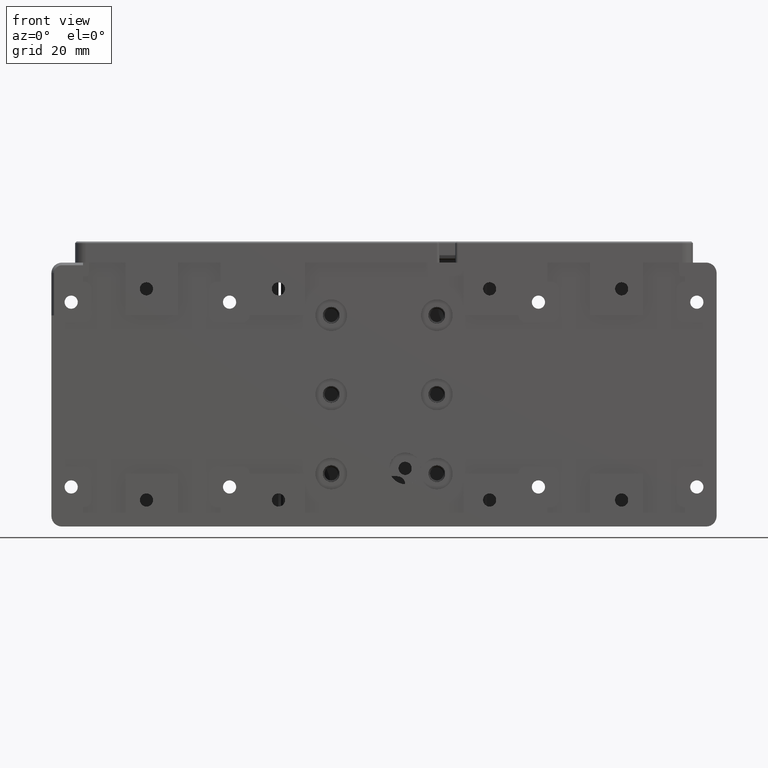
[diagram: clean part render]
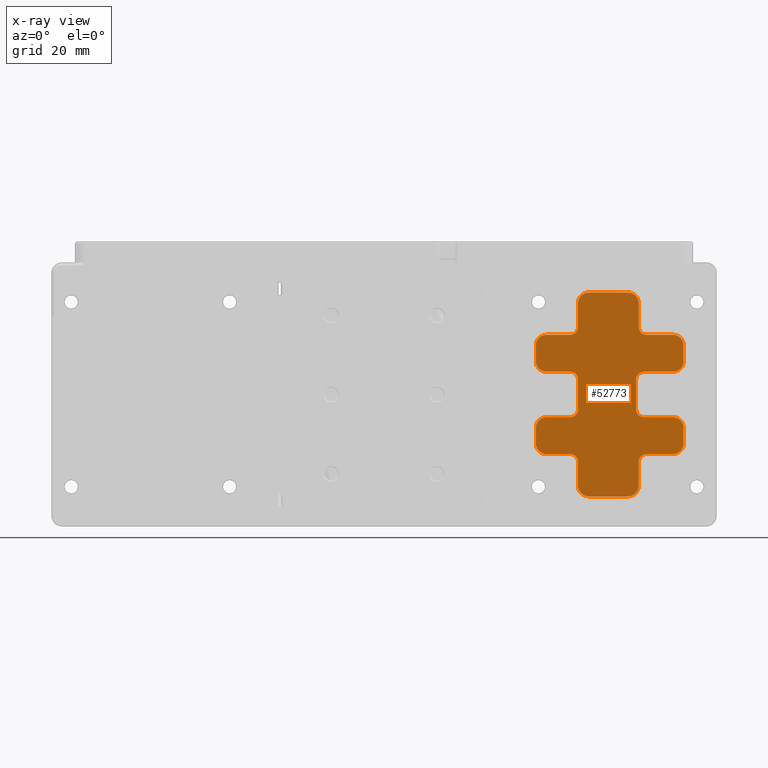
[diagram: x-ray — body ghosted, one internal face saturated and labeled with its STEP entity id]
A machine part, front view, then the same camera in x-ray: the body is ghosted and one INTERNAL B-rep face — a face not visible from any outside direction — is saturated and labeled: STEP entity #52773.
In plain terms, the highlighted planar face has unit normal (-0, 1, 0).
Its self-contained STEP definition (entity closure, byte-faithful):
#18 = EDGE_CURVE ( 'NONE', #44864, #44602, #40822, .T. ) ;
#27 = DIRECTION ( 'NONE',  ( 1.000000000000000000, 0.000000000000000000, 0.000000000000000000 ) ) ;
#96 = CARTESIAN_POINT ( 'NONE',  ( 28.74999999999999645, 10.50000000000000000, 0.000000000000000000 ) ) ;
#140 = ORIENTED_EDGE ( 'NONE', *, *, #37099, .F. ) ;
#359 = EDGE_CURVE ( 'NONE', #51340, #20688, #17836, .T. ) ;
#388 = CARTESIAN_POINT ( 'NONE',  ( 48.19794535333662822, 10.49999999999999822, -17.82349576871856556 ) ) ;
#465 = ORIENTED_EDGE ( 'NONE', *, *, #2302, .F. ) ;
#506 = DIRECTION ( 'NONE',  ( -0.000000000000000000, -0.000000000000000000, 1.000000000000000000 ) ) ;
#783 = ORIENTED_EDGE ( 'NONE', *, *, #22541, .F. ) ;
#821 = CARTESIAN_POINT ( 'NONE',  ( 42.74999999999999289, 10.50000000000000000, 0.000000000000000000 ) ) ;
#885 = EDGE_CURVE ( 'NONE', #43221, #4994, #41299, .T. ) ;
#1061 = DIRECTION ( 'NONE',  ( 0.000000000000000000, 0.000000000000000000, -1.000000000000000000 ) ) ;
#1074 = CARTESIAN_POINT ( 'NONE',  ( 36.56067958253154160, 10.50000000000000000, 12.04457152944394771 ) ) ;
#1162 = VECTOR ( 'NONE', #16877, 1000.000000000000000 ) ;
#1198 = ORIENTED_EDGE ( 'NONE', *, *, #43585, .F. ) ;
#1217 = ORIENTED_EDGE ( 'NONE', *, *, #11800, .F. ) ;
#1218 = CARTESIAN_POINT ( 'NONE',  ( 55.01179938779914380, 10.49999999999999645, -4.299999999999998934 ) ) ;
#1238 = CARTESIAN_POINT ( 'NONE',  ( 46.77349576871855419, 10.50000000000000000, -19.24794535333663603 ) ) ;
#1518 = CARTESIAN_POINT ( 'NONE',  ( 55.75723796074179717, 10.49999999999999467, -4.552427223291484637 ) ) ;
#1771 = CARTESIAN_POINT ( 'NONE',  ( 55.75723796074179717, 10.49999999999999467, 11.04757277670851501 ) ) ;
#1784 = CARTESIAN_POINT ( 'NONE',  ( 56.49757277670852318, 10.49999999999999822, -5.292762039258199991 ) ) ;
#1870 = EDGE_CURVE ( 'NONE', #33982, #5004, #26280, .T. ) ;
#2038 = CARTESIAN_POINT ( 'NONE',  ( 56.49757277670852318, 10.49999999999999822, 10.30723796074180321 ) ) ;
#2042 = VERTEX_POINT ( 'NONE', #53766 ) ;
#2065 = CARTESIAN_POINT ( 'NONE',  ( 36.75000000000000000, 10.49999999999999822, -17.56179938779915162 ) ) ;
#2302 = EDGE_CURVE ( 'NONE', #26831, #51340, #23930, .T. ) ;
#2363 = CARTESIAN_POINT ( 'NONE',  ( 38.22650423128144581, 10.49999999999999822, -19.24794535333663603 ) ) ;
#2569 = LINE ( 'NONE', #22573, #55690 ) ;
#2619 = CARTESIAN_POINT ( 'NONE',  ( 48.25000000000000000, 10.50000000000000000, 15.05000000000000071 ) ) ;
#2724 = VECTOR ( 'NONE', #10719, 1000.000000000000000 ) ;
#2783 = CARTESIAN_POINT ( 'NONE',  ( 30.75000000000000000, 10.50000000000000000, 11.30000000000000071 ) ) ;
#2857 = B_SPLINE_CURVE_WITH_KNOTS ( 'NONE', 3,
 ( #40093, #36120, #48596, #39820, #52550, #13707, #18247, #9762, #49134, #13991, #27039, #5797, #44336, #5507, #23068, #18828, #37509, #20489, #11699, #37220 ),
 .UNSPECIFIED., .F., .F.,
 ( 4, 1, 1, 1, 2, 2, 2, 1, 1, 1, 2, 2, 4 ),
 ( 0.000000000000000000, 0.1249999999999961975, 0.1874999999999953371, 0.2187499999999949207, 0.2343749999999958367, 0.2499999999999967248, 0.4999999999999802380, 0.6249999999999686917, 0.6874999999999593658, 0.7187499999999545919, 0.7343749999999551470, 0.7499999999999557021, 1.000000000000000000 ),
 .UNSPECIFIED. ) ;
#2881 = CARTESIAN_POINT ( 'NONE',  ( 38.75000000000000000, 10.50000000000000000, 19.29999999999999716 ) ) ;
#2978 = VECTOR ( 'NONE', #12432, 1000.000000000000000 ) ;
#3004 = DIRECTION ( 'NONE',  ( -0.000000000000000000, -0.000000000000000000, 1.000000000000000000 ) ) ;
#3174 = CARTESIAN_POINT ( 'NONE',  ( 36.91670413671494089, 10.50000000000000000, 18.09970802452080818 ) ) ;
#3180 = CARTESIAN_POINT ( 'NONE',  ( 47.78904098499753417, 10.49999999999999822, -3.192621826538920793 ) ) ;
#3346 = CARTESIAN_POINT ( 'NONE',  ( 36.44950026359727246, 10.49999999999999645, -3.721820079962372407 ) ) ;
#3430 = CARTESIAN_POINT ( 'NONE',  ( 28.74999999999999645, 10.49999999999999645, 9.561799387799149841 ) ) ;
#3463 = CARTESIAN_POINT ( 'NONE',  ( 36.98947487602690387, 10.49999999999999645, 18.25392591346776783 ) ) ;
#3486 = CARTESIAN_POINT ( 'NONE',  ( 29.74276203925819573, 10.49999999999999467, -11.04757277670851501 ) ) ;
#3508 = CARTESIAN_POINT ( 'NONE',  ( 36.75000000000000000, 10.50000000000000000, -12.80000000000000071 ) ) ;
#3623 = EDGE_CURVE ( 'NONE', #18441, #4936, #7367, .T. ) ;
#3662 = EDGE_CURVE ( 'NONE', #5705, #21650, #44867, .T. ) ;
#3727 = CARTESIAN_POINT ( 'NONE',  ( 36.90328835591012790, 10.50000000000000000, 18.06812710979158254 ) ) ;
#4060 = LINE ( 'NONE', #17092, #41471 ) ;
#4129 = EDGE_CURVE ( 'NONE', #52508, #19752, #29181, .T. ) ;
#4322 = VERTEX_POINT ( 'NONE', #10982 ) ;
#4344 = EDGE_CURVE ( 'NONE', #52887, #49273, #23478, .T. ) ;
#4397 = ORIENTED_EDGE ( 'NONE', *, *, #359, .F. ) ;
#4417 = EDGE_CURVE ( 'NONE', #20376, #44864, #53801, .T. ) ;
#4530 = CARTESIAN_POINT ( 'NONE',  ( 29.74276203925819573, 10.49999999999999467, 4.552427223291484637 ) ) ;
#4761 = CARTESIAN_POINT ( 'NONE',  ( 48.25000000001439560, 10.49999999999999645, 12.60365045904980086 ) ) ;
#4772 = CARTESIAN_POINT ( 'NONE',  ( 28.74999999999999645, 10.50000000000000000, 0.000000000000000000 ) ) ;
#4805 = CARTESIAN_POINT ( 'NONE',  ( 28.80205464666336823, 10.50000000000000000, 5.776504231281439417 ) ) ;
#4892 = EDGE_CURVE ( 'NONE', #52574, #40760, #44531, .T. ) ;
#4936 = VERTEX_POINT ( 'NONE', #48207 ) ;
#4994 = VERTEX_POINT ( 'NONE', #40313 ) ;
#5004 = VERTEX_POINT ( 'NONE', #10220 ) ;
#5111 = CARTESIAN_POINT ( 'NONE',  ( 35.44634954084936140, 10.49999999999999822, 4.300000000000000711 ) ) ;
#5210 = ORIENTED_EDGE ( 'NONE', *, *, #4892, .F. ) ;
#5255 = ORIENTED_EDGE ( 'NONE', *, *, #51671, .F. ) ;
#5331 = CARTESIAN_POINT ( 'NONE',  ( 56.49757277670852318, 10.49999999999999467, -10.30723796074180143 ) ) ;
#5490 = CARTESIAN_POINT ( 'NONE',  ( 55.97909343994982834, 10.49999999999999822, -4.700666315203639201 ) ) ;
#5507 = CARTESIAN_POINT ( 'NONE',  ( 47.09672262067641668, 10.49999999999999822, 19.11262136930766076 ) ) ;
#5654 = DIRECTION ( 'NONE',  ( 1.000000000000000000, 0.000000000000000000, 0.000000000000000000 ) ) ;
#5705 = VERTEX_POINT ( 'NONE', #26253 ) ;
#5797 = CARTESIAN_POINT ( 'NONE',  ( 47.40834277277077291, 10.50000000000000355, 18.94090959574760191 ) ) ;
#5888 = EDGE_CURVE ( 'NONE', #55401, #29713, #33330, .T. ) ;
#5895 = CARTESIAN_POINT ( 'NONE',  ( 55.01179938779915801, 10.49999999999999822, -11.30000000000000249 ) ) ;
#5990 = CARTESIAN_POINT ( 'NONE',  ( 48.25000000000000000, 10.50000000000000000, 17.30000000000000071 ) ) ;
#6056 = CARTESIAN_POINT ( 'NONE',  ( 56.69794535333663532, 10.50000000000000000, 9.823495768718563781 ) ) ;
#6068 = CARTESIAN_POINT ( 'NONE',  ( 56.75000000000000711, 10.49999999999999822, -6.038200612200850692 ) ) ;
#6277 = CARTESIAN_POINT ( 'NONE',  ( 42.74999999999999289, 10.50000000000000000, 4.299999999999999822 ) ) ;
#6384 = CARTESIAN_POINT ( 'NONE',  ( 48.55049973644299399, 10.49999999999999822, 11.87817991998716316 ) ) ;
#6435 = CARTESIAN_POINT ( 'NONE',  ( 56.69794535333663532, 10.49999999999999822, -9.823495768718558452 ) ) ;
#6450 = VERTEX_POINT ( 'NONE', #50126 ) ;
#6481 = CARTESIAN_POINT ( 'NONE',  ( 55.75723796074180427, 10.49999999999999822, 4.552427223291483749 ) ) ;
#6581 = CARTESIAN_POINT ( 'NONE',  ( 46.25000000000000000, 10.50000000000000000, -19.29999999999999716 ) ) ;
#6599 = CARTESIAN_POINT ( 'NONE',  ( 48.28904098499751285, 10.50000000000000000, -12.40737817346108329 ) ) ;
#6887 = CARTESIAN_POINT ( 'NONE',  ( 48.25000000000000000, 10.50000000000000000, -12.80000000000000071 ) ) ;
#7035 = CARTESIAN_POINT ( 'NONE',  ( 35.44634954084935430, 10.50000000000000000, -4.299999999999999822 ) ) ;
#7127 = B_SPLINE_CURVE_WITH_KNOTS ( 'NONE', 3,
 ( #50662, #7035, #25146, #46683, #41612, #3346, #55470, #11555, #28847, #25405 ),
 .UNSPECIFIED., .F., .F.,
 ( 4, 2, 2, 2, 4 ),
 ( 0.000000000000000000, 0.2500000000000000000, 0.5000000000000000000, 0.7500000000000000000, 1.000000000000000000 ),
 .UNSPECIFIED. ) ;
#7144 = CARTESIAN_POINT ( 'NONE',  ( 28.80205464666336823, 10.49999999999999822, -5.776504231281441193 ) ) ;
#7209 = CARTESIAN_POINT ( 'NONE',  ( 35.25000000000000000, 10.50000000000000000, 4.299999999999999822 ) ) ;
#7281 = EDGE_CURVE ( 'NONE', #18345, #41315, #39999, .T. ) ;
#7367 = B_SPLINE_CURVE_WITH_KNOTS ( 'NONE', 3,
 ( #9997, #47979, #8888, #1771, #41466, #45976, #2038, #6056, #37190, #15088 ),
 .UNSPECIFIED., .F., .F.,
 ( 4, 2, 2, 2, 4 ),
 ( 0.000000000000000000, 0.2500000000000000000, 0.5000000000000000000, 0.7500000000000000000, 1.000000000000000000 ),
 .UNSPECIFIED. ) ;
#7700 = CARTESIAN_POINT ( 'NONE',  ( 38.07306092345625359, 10.49999999999999822, 19.18206628694079541 ) ) ;
#7705 = CARTESIAN_POINT ( 'NONE',  ( 47.93932041746860762, 10.50000000000000000, 3.555428470556350806 ) ) ;
#7745 = ORIENTED_EDGE ( 'NONE', *, *, #49848, .F. ) ;
#7856 = ORIENTED_EDGE ( 'NONE', *, *, #40122, .F. ) ;
#7990 = CARTESIAN_POINT ( 'NONE',  ( 49.25000000000000000, 10.50000000000000000, -4.299999999999999822 ) ) ;
#8091 = CARTESIAN_POINT ( 'NONE',  ( 28.74999999999999645, 10.50000000000000000, 9.300000000000000711 ) ) ;
#8242 = B_SPLINE_CURVE_WITH_KNOTS ( 'NONE', 3,
 ( #55598, #51616, #3180, #33492, #46822, #47079, #8537, #17053, #42008, #7990 ),
 .UNSPECIFIED., .F., .F.,
 ( 4, 2, 2, 2, 4 ),
 ( 0.000000000000000000, 0.2500000000000000000, 0.5000000000000000000, 0.7500000000000000000, 1.000000000000000000 ),
 .UNSPECIFIED. ) ;
#8244 = CARTESIAN_POINT ( 'NONE',  ( 36.93737863069193139, 10.49999999999999822, 18.14672262067600883 ) ) ;
#8335 = ORIENTED_EDGE ( 'NONE', *, *, #13043, .F. ) ;
#8521 = VECTOR ( 'NONE', #1061, 1000.000000000000000 ) ;
#8537 = CARTESIAN_POINT ( 'NONE',  ( 48.49457152944363969, 10.49999999999999822, -4.110679582531387766 ) ) ;
#8787 = CARTESIAN_POINT ( 'NONE',  ( 28.74999999999999645, 10.50000000000000000, 6.299999999999999822 ) ) ;
#8799 = EDGE_CURVE ( 'NONE', #22879, #52179, #2569, .T. ) ;
#8888 = CARTESIAN_POINT ( 'NONE',  ( 55.27349576871857550, 10.49999999999999822, 11.24794535333663426 ) ) ;
#9059 = CARTESIAN_POINT ( 'NONE',  ( 36.44950026359727957, 10.49999999999999822, 3.721820079962372407 ) ) ;
#9069 = EDGE_CURVE ( 'NONE', #39927, #36160, #28936, .T. ) ;
#9336 = CARTESIAN_POINT ( 'NONE',  ( 36.75000000000000000, 10.49999999999999645, 2.996349540849363002 ) ) ;
#9578 = CARTESIAN_POINT ( 'NONE',  ( 48.25000000000000000, 10.50000000000000000, 12.79999999991749959 ) ) ;
#9762 = CARTESIAN_POINT ( 'NONE',  ( 48.11594175542395391, 10.49999999999999645, 18.02012349002050939 ) ) ;
#9872 = LINE ( 'NONE', #52966, #8521 ) ;
#9997 = CARTESIAN_POINT ( 'NONE',  ( 54.75000000000000000, 10.50000000000000000, 11.30000000000000071 ) ) ;
#10009 = CARTESIAN_POINT ( 'NONE',  ( 56.69794535333663532, 10.50000000000000000, -5.776504231281439417 ) ) ;
#10044 = LINE ( 'NONE', #27320, #46630 ) ;
#10220 = CARTESIAN_POINT ( 'NONE',  ( 54.75000000000000000, 10.50000000000000000, -4.299999999999999822 ) ) ;
#10254 = VERTEX_POINT ( 'NONE', #25856 ) ;
#10638 = CARTESIAN_POINT ( 'NONE',  ( 49.74999999999999289, 10.50000000000000000, 11.30000000000000071 ) ) ;
#10691 = B_SPLINE_CURVE_WITH_KNOTS ( 'NONE', 3,
 ( #32660, #32943, #49951, #28126, #24704, #45413, #20176, #6599, #11111, #6887 ),
 .UNSPECIFIED., .F., .F.,
 ( 4, 2, 2, 2, 4 ),
 ( 0.000000000000000000, 0.2500000000000000000, 0.5000000000000000000, 0.7500000000000000000, 1.000000000000000000 ),
 .UNSPECIFIED. ) ;
#10719 = DIRECTION ( 'NONE',  ( 0.000000000000000000, 0.000000000000000000, -1.000000000000000000 ) ) ;
#10735 = CARTESIAN_POINT ( 'NONE',  ( 56.49757277670852318, 10.49999999999999467, 5.292762039258199991 ) ) ;
#10743 = DIRECTION ( 'NONE',  ( -0.000000000000000000, 1.000000000000000000, 0.000000000000000000 ) ) ;
#10982 = CARTESIAN_POINT ( 'NONE',  ( 28.74999999999999645, 10.50000000000000000, -9.300000000000000711 ) ) ;
#11111 = CARTESIAN_POINT ( 'NONE',  ( 48.24999999999999289, 10.50000000000000000, -12.60365045915063931 ) ) ;
#11181 = ORIENTED_EDGE ( 'NONE', *, *, #3662, .T. ) ;
#11352 = CARTESIAN_POINT ( 'NONE',  ( 28.80205464666336823, 10.49999999999999822, 9.823495768718558452 ) ) ;
#11538 = DIRECTION ( 'NONE',  ( -1.000000000000000000, -0.000000000000000000, -0.000000000000000000 ) ) ;
#11555 = CARTESIAN_POINT ( 'NONE',  ( 36.71095901500247294, 10.50000000000000000, -3.192621826538920793 ) ) ;
#11699 = CARTESIAN_POINT ( 'NONE',  ( 46.50414628084154600, 10.50000000000000178, 19.30000000000001137 ) ) ;
#11800 = EDGE_CURVE ( 'NONE', #20688, #41219, #43598, .T. ) ;
#11929 = CARTESIAN_POINT ( 'NONE',  ( 38.11768543585435509, 10.50000000000000711, 19.19797362498135485 ) ) ;
#12193 = AXIS2_PLACEMENT_3D ( 'NONE', #821, #10743, #5654 ) ;
#12244 = CARTESIAN_POINT ( 'NONE',  ( 29.00242722329148393, 10.49999999999999822, -10.30723796074180321 ) ) ;
#12262 = EDGE_CURVE ( 'NONE', #5004, #22879, #34795, .T. ) ;
#12269 = CARTESIAN_POINT ( 'NONE',  ( 36.56067958253138528, 10.49999999999999467, -12.04457152944365106 ) ) ;
#12432 = DIRECTION ( 'NONE',  ( -1.000000000000000000, -0.000000000000000000, -0.000000000000000000 ) ) ;
#12485 = EDGE_CURVE ( 'NONE', #2042, #18441, #34068, .T. ) ;
#12515 = CARTESIAN_POINT ( 'NONE',  ( 49.25000000000000000, 10.50000000000000000, 4.299999999999999822 ) ) ;
#12536 = CARTESIAN_POINT ( 'NONE',  ( 30.75000000000000000, 10.50000000000000000, -11.30000000000000071 ) ) ;
#12597 = DIRECTION ( 'NONE',  ( -0.000000000000000000, -0.000000000000000000, 1.000000000000000000 ) ) ;
#13043 = EDGE_CURVE ( 'NONE', #6450, #55401, #24540, .T. ) ;
#13072 = CARTESIAN_POINT ( 'NONE',  ( 30.48820061220084199, 10.49999999999999645, -11.29999999999999716 ) ) ;
#13270 = CARTESIAN_POINT ( 'NONE',  ( 48.82817992007513652, 10.49999999999999645, 11.60049973637540965 ) ) ;
#13482 = ORIENTED_EDGE ( 'NONE', *, *, #49907, .F. ) ;
#13538 = CARTESIAN_POINT ( 'NONE',  ( 48.28904098502263764, 10.49999999999999822, 12.40737817337226012 ) ) ;
#13707 = CARTESIAN_POINT ( 'NONE',  ( 48.13206628694079114, 10.49999999999999645, 17.97693907654372936 ) ) ;
#13928 = CARTESIAN_POINT ( 'NONE',  ( 28.74999999999999645, 10.50000000000000000, 6.299999999999999822 ) ) ;
#13991 = CARTESIAN_POINT ( 'NONE',  ( 47.85977673002584964, 10.50000000000000000, 18.51875567276676904 ) ) ;
#14067 = VERTEX_POINT ( 'NONE', #2783 ) ;
#14091 = CARTESIAN_POINT ( 'NONE',  ( 55.75723796074180427, 10.49999999999999822, -11.04757277670851856 ) ) ;
#14152 = PLANE ( 'NONE',  #12193 ) ;
#14178 = B_SPLINE_CURVE_WITH_KNOTS ( 'NONE', 3,
 ( #45684, #24150, #7144, #21822, #38865, #51873, #51607, #25808, #43392, #17877 ),
 .UNSPECIFIED., .F., .F.,
 ( 4, 2, 2, 2, 4 ),
 ( 0.000000000000000000, 0.2500000000000000000, 0.5000000000000000000, 0.7500000000000000000, 1.000000000000000000 ),
 .UNSPECIFIED. ) ;
#14282 = CARTESIAN_POINT ( 'NONE',  ( 36.80205464666337178, 10.50000000000000000, -17.82349576871855845 ) ) ;
#14285 = CARTESIAN_POINT ( 'NONE',  ( 47.47909343994983544, 10.49999999999999645, -18.89933368479636044 ) ) ;
#14405 = CARTESIAN_POINT ( 'NONE',  ( 36.00542847055691453, 10.50000000000000000, 11.48932041746896004 ) ) ;
#14667 = DIRECTION ( 'NONE',  ( 1.000000000000000000, -0.000000000000000000, -0.000000000000000000 ) ) ;
#14974 = CARTESIAN_POINT ( 'NONE',  ( 56.74999999999999289, 10.50000000000000000, 6.299999999999999822 ) ) ;
#15088 = CARTESIAN_POINT ( 'NONE',  ( 56.74999999999999289, 10.50000000000000000, 9.300000000000000711 ) ) ;
#15576 = EDGE_LOOP ( 'NONE', ( #1217, #4397, #465, #52233, #31368, #33745, #50508, #52658, #15739, #783, #140, #54150, #22953, #48027, #52336, #53530, #16840, #32646, #7856, #1198, #47299, #17051, #30663, #7745, #55080, #13482, #5210, #48621, #15907, #22439, #55769, #39864, #11181, #46320, #43280, #38156, #34863, #8335, #23950, #5255 ) ) ;
#15739 = ORIENTED_EDGE ( 'NONE', *, *, #22110, .F. ) ;
#15805 = CARTESIAN_POINT ( 'NONE',  ( 42.49999999999999289, 10.50000000000000000, 19.30000000000000071 ) ) ;
#15907 = ORIENTED_EDGE ( 'NONE', *, *, #29154, .F. ) ;
#15930 = CARTESIAN_POINT ( 'NONE',  ( 37.10909040425145378, 10.49999999999999822, 18.45834277276981439 ) ) ;
#16359 = CARTESIAN_POINT ( 'NONE',  ( 36.75000000000000000, 10.50000000000000000, 12.80000000000000071 ) ) ;
#16470 = CARTESIAN_POINT ( 'NONE',  ( 48.05049973640272043, 10.49999999999999645, 3.721820079962371963 ) ) ;
#16479 = CARTESIAN_POINT ( 'NONE',  ( 49.74999999999999289, 10.50000000000000000, -11.30000000000000071 ) ) ;
#16514 = CARTESIAN_POINT ( 'NONE',  ( 35.25000000000000000, 10.50000000000000000, -11.30000000000000071 ) ) ;
#16758 = CARTESIAN_POINT ( 'NONE',  ( 37.75675571522447882, 10.49999999999999645, 19.05773414933907617 ) ) ;
#16840 = ORIENTED_EDGE ( 'NONE', *, *, #4417, .F. ) ;
#16877 = DIRECTION ( 'NONE',  ( -0.000000000000000000, -0.000000000000000000, 1.000000000000000000 ) ) ;
#16975 = CARTESIAN_POINT ( 'NONE',  ( 42.74999999999999289, 10.50000000000000000, -19.30000000000000071 ) ) ;
#17051 = ORIENTED_EDGE ( 'NONE', *, *, #12262, .F. ) ;
#17053 = CARTESIAN_POINT ( 'NONE',  ( 48.85737817346107903, 10.50000000000000000, -4.260959015002472761 ) ) ;
#17074 = CARTESIAN_POINT ( 'NONE',  ( 29.52090656005017522, 10.49999999999999822, -10.89933368479636400 ) ) ;
#17092 = CARTESIAN_POINT ( 'NONE',  ( 42.74999999999999289, 10.50000000000000000, -4.299999999999999822 ) ) ;
#17093 = CARTESIAN_POINT ( 'NONE',  ( 36.00542847055636031, 10.49999999999999822, -11.48932041746861543 ) ) ;
#17315 = CARTESIAN_POINT ( 'NONE',  ( 48.32817992003762697, 10.50000000000000000, 3.999500263597270511 ) ) ;
#17631 = CARTESIAN_POINT ( 'NONE',  ( 30.75000000000000000, 10.50000000000000000, -4.299999999999999822 ) ) ;
#17836 = B_SPLINE_CURVE_WITH_KNOTS ( 'NONE', 3,
 ( #38569, #30318, #29765, #4530, #55862, #51317, #34847, #4805, #47612, #8787 ),
 .UNSPECIFIED., .F., .F.,
 ( 4, 2, 2, 2, 4 ),
 ( 0.000000000000000000, 0.2500000000000000000, 0.5000000000000000000, 0.7500000000000000000, 1.000000000000000000 ),
 .UNSPECIFIED. ) ;
#17871 = EDGE_CURVE ( 'NONE', #25841, #52508, #7127, .T. ) ;
#17877 = CARTESIAN_POINT ( 'NONE',  ( 30.75000000000000000, 10.50000000000000000, -4.299999999999999822 ) ) ;
#17966 = CARTESIAN_POINT ( 'NONE',  ( 30.75000000000000000, 10.50000000000000000, -11.30000000000000071 ) ) ;
#18247 = CARTESIAN_POINT ( 'NONE',  ( 48.12109570898179101, 10.50000000000000000, 18.00661760653747479 ) ) ;
#18345 = VERTEX_POINT ( 'NONE', #52202 ) ;
#18382 = CARTESIAN_POINT ( 'NONE',  ( 36.75000000000000711, 10.50000000000000000, 12.60365045915072280 ) ) ;
#18441 = VERTEX_POINT ( 'NONE', #32031 ) ;
#18813 = CARTESIAN_POINT ( 'NONE',  ( 56.74999999999999289, 10.50000000000000000, -6.299999999999999822 ) ) ;
#18826 = CARTESIAN_POINT ( 'NONE',  ( 36.75000000000000000, 10.50000000000000000, -17.30000000000000071 ) ) ;
#18828 = CARTESIAN_POINT ( 'NONE',  ( 47.01812710979171328, 10.50000000000000000, 19.14671164408973425 ) ) ;
#19521 = CARTESIAN_POINT ( 'NONE',  ( 54.75000000000000000, 10.50000000000000000, 4.299999999999999822 ) ) ;
#19693 = CARTESIAN_POINT ( 'NONE',  ( 42.74999999999999289, 10.50000000000000000, 4.299999999999999822 ) ) ;
#19752 = VERTEX_POINT ( 'NONE', #24594 ) ;
#19894 = DIRECTION ( 'NONE',  ( -0.000000000000000000, -0.000000000000000000, 1.000000000000000000 ) ) ;
#20176 = CARTESIAN_POINT ( 'NONE',  ( 48.43932041746860762, 10.50000000000000000, -12.04457152944365106 ) ) ;
#20207 = CARTESIAN_POINT ( 'NONE',  ( 35.44634954084936140, 10.49999999999999822, -11.30000000000000249 ) ) ;
#20376 = VERTEX_POINT ( 'NONE', #28738 ) ;
#20475 = B_SPLINE_CURVE_WITH_KNOTS ( 'NONE', 3,
 ( #2881, #47074, #55050, #25256, #11929, #7700, #24417, #29524, #16758, #41721, #34324, #15930, #3463, #8244, #3174, #3727, #24988, #38303, #25523, #55592 ),
 .UNSPECIFIED., .F., .F.,
 ( 4, 1, 1, 1, 2, 2, 2, 1, 1, 1, 2, 2, 4 ),
 ( 0.000000000000000000, 0.1250000000000410505, 0.1875000000000615619, 0.2187500000000746625, 0.2343750000000774103, 0.2500000000000801581, 0.5000000000000480727, 0.6250000000000309752, 0.6875000000000210942, 0.7187500000000175415, 0.7343750000000144329, 0.7500000000000113243, 1.000000000000000000 ),
 .UNSPECIFIED. ) ;
#20489 = CARTESIAN_POINT ( 'NONE',  ( 46.74954275388277125, 10.50000000000000178, 19.25319220070828763 ) ) ;
#20688 = VERTEX_POINT ( 'NONE', #13928 ) ;
#20953 = CARTESIAN_POINT ( 'NONE',  ( 56.74999999999999289, 10.50000000000000000, -6.299999999999999822 ) ) ;
#20996 = CARTESIAN_POINT ( 'NONE',  ( 49.05365045915063860, 10.50000000000000000, 4.299999999999999822 ) ) ;
#21060 = VECTOR ( 'NONE', #38548, 1000.000000000000000 ) ;
#21104 = CARTESIAN_POINT ( 'NONE',  ( 36.75000000000000000, 10.50000000000000000, 15.05000000000000071 ) ) ;
#21168 = CARTESIAN_POINT ( 'NONE',  ( 49.25000000000000000, 10.50000000000000000, -4.299999999999999822 ) ) ;
#21271 = CARTESIAN_POINT ( 'NONE',  ( 47.75000000000000000, 10.50000000000000000, 2.800000000000000266 ) ) ;
#21335 = VERTEX_POINT ( 'NONE', #16479 ) ;
#21650 = VERTEX_POINT ( 'NONE', #5990 ) ;
#21822 = CARTESIAN_POINT ( 'NONE',  ( 29.00242722329148393, 10.49999999999999467, -5.292762039258200879 ) ) ;
#22110 = EDGE_CURVE ( 'NONE', #4322, #10254, #47996, .T. ) ;
#22364 = CARTESIAN_POINT ( 'NONE',  ( 36.17182007996282067, 10.50000000000000000, 11.60049973640309950 ) ) ;
#22437 = DIRECTION ( 'NONE',  ( -1.000000000000000000, -0.000000000000000000, -0.000000000000000000 ) ) ;
#22439 = ORIENTED_EDGE ( 'NONE', *, *, #3623, .F. ) ;
#22512 = CARTESIAN_POINT ( 'NONE',  ( 48.25000000000000000, 10.50000000000000000, -17.30000000000000071 ) ) ;
#22541 = EDGE_CURVE ( 'NONE', #38700, #4322, #37110, .T. ) ;
#22573 = CARTESIAN_POINT ( 'NONE',  ( 56.74999999999999289, 10.50000000000000000, 0.000000000000000000 ) ) ;
#22879 = VERTEX_POINT ( 'NONE', #20953 ) ;
#22935 = CARTESIAN_POINT ( 'NONE',  ( 36.75000000000000000, 10.50000000000000000, -17.30000000000000071 ) ) ;
#22953 = ORIENTED_EDGE ( 'NONE', *, *, #24534, .F. ) ;
#22954 = VECTOR ( 'NONE', #12597, 1000.000000000000000 ) ;
#23068 = CARTESIAN_POINT ( 'NONE',  ( 47.04970802452104550, 10.50000000000000000, 19.13329586328482534 ) ) ;
#23100 = DIRECTION ( 'NONE',  ( -1.000000000000000000, -0.000000000000000000, -0.000000000000000000 ) ) ;
#23143 = CARTESIAN_POINT ( 'NONE',  ( 56.74999999999999289, 10.50000000000000000, -9.300000000000000711 ) ) ;
#23478 = LINE ( 'NONE', #15805, #49155 ) ;
#23709 = CARTESIAN_POINT ( 'NONE',  ( 56.34933368479637039, 10.49999999999999822, -10.52909343994982905 ) ) ;
#23760 = CARTESIAN_POINT ( 'NONE',  ( 55.27349576871856129, 10.50000000000000000, 4.352054646663368942 ) ) ;
#23930 = LINE ( 'NONE', #19693, #39983 ) ;
#23950 = ORIENTED_EDGE ( 'NONE', *, *, #53354, .F. ) ;
#24150 = CARTESIAN_POINT ( 'NONE',  ( 28.74999999999999645, 10.49999999999999645, -6.038200612200849804 ) ) ;
#24417 = CARTESIAN_POINT ( 'NONE',  ( 38.04338239346252948, 10.49999999999999822, 19.17109570898180593 ) ) ;
#24534 = EDGE_CURVE ( 'NONE', #36160, #18345, #51187, .T. ) ;
#24540 = B_SPLINE_CURVE_WITH_KNOTS ( 'NONE', 3,
 ( #44191, #48127, #47866, #14405, #22364, #26307, #1074, #39671, #18382, #35677 ),
 .UNSPECIFIED., .F., .F.,
 ( 4, 2, 2, 2, 4 ),
 ( 0.000000000000000000, 0.2500000000000000000, 0.5000000000000000000, 0.7500000000000000000, 1.000000000000000000 ),
 .UNSPECIFIED. ) ;
#24594 = CARTESIAN_POINT ( 'NONE',  ( 36.75000000000000000, 10.50000000000000000, 2.800000000000000266 ) ) ;
#24654 = CARTESIAN_POINT ( 'NONE',  ( 30.22650423128144936, 10.50000000000000000, 11.24794535333663248 ) ) ;
#24694 = CARTESIAN_POINT ( 'NONE',  ( 48.49457152944361837, 10.50000000000000000, 4.110679582531385101 ) ) ;
#24704 = CARTESIAN_POINT ( 'NONE',  ( 48.82817992003762697, 10.50000000000000000, -11.60049973640273535 ) ) ;
#24988 = CARTESIAN_POINT ( 'NONE',  ( 36.89627437278659983, 10.49999999999999822, 18.05097983570139419 ) ) ;
#25146 = CARTESIAN_POINT ( 'NONE',  ( 35.64262182653891387, 10.50000000000000178, -4.260959015002474537 ) ) ;
#25256 = CARTESIAN_POINT ( 'NONE',  ( 38.22255631996882386, 10.49999999999999645, 19.23125104479029446 ) ) ;
#25301 = CARTESIAN_POINT ( 'NONE',  ( 36.71095901500247294, 10.49999999999999822, -12.40737817346108329 ) ) ;
#25365 = VECTOR ( 'NONE', #28517, 1000.000000000000000 ) ;
#25405 = CARTESIAN_POINT ( 'NONE',  ( 36.75000000000000000, 10.50000000000000000, -2.799999999999999822 ) ) ;
#25523 = CARTESIAN_POINT ( 'NONE',  ( 36.75000000000001421, 10.49999999999999822, 17.55414628084001905 ) ) ;
#25626 = LINE ( 'NONE', #55698, #54952 ) ;
#25808 = CARTESIAN_POINT ( 'NONE',  ( 30.22650423128144936, 10.50000000000000000, -4.352054646663368942 ) ) ;
#25841 = VERTEX_POINT ( 'NONE', #29585 ) ;
#25856 = CARTESIAN_POINT ( 'NONE',  ( 28.74999999999999645, 10.50000000000000000, -6.299999999999999822 ) ) ;
#25864 = CARTESIAN_POINT ( 'NONE',  ( 35.64262182653891387, 10.50000000000000000, -11.33904098499753133 ) ) ;
#25987 = DIRECTION ( 'NONE',  ( 0.000000000000000000, 0.000000000000000000, -1.000000000000000000 ) ) ;
#26075 = CARTESIAN_POINT ( 'NONE',  ( 36.56067958253138528, 10.49999999999999467, 3.555428470556350362 ) ) ;
#26112 = CARTESIAN_POINT ( 'NONE',  ( 36.75000000000000000, 10.50000000000000000, 17.30000000000000071 ) ) ;
#26253 = CARTESIAN_POINT ( 'NONE',  ( 48.25000000000000000, 10.50000000000000000, 12.79999999991749959 ) ) ;
#26280 = LINE ( 'NONE', #36205, #29089 ) ;
#26307 = CARTESIAN_POINT ( 'NONE',  ( 36.44950026359750694, 10.49999999999999645, 11.87817992003797052 ) ) ;
#26456 = CARTESIAN_POINT ( 'NONE',  ( 48.24999999999999289, 10.49999999999999645, -17.56179938779914806 ) ) ;
#26831 = VERTEX_POINT ( 'NONE', #7209 ) ;
#26873 = CARTESIAN_POINT ( 'NONE',  ( 48.43932041750665007, 10.49999999999999467, 12.04457152938003439 ) ) ;
#26977 = CARTESIAN_POINT ( 'NONE',  ( 49.25000000000000000, 10.50000000000000000, 4.299999999999999822 ) ) ;
#27037 = CARTESIAN_POINT ( 'NONE',  ( 37.00242722329147682, 10.49999999999999822, -18.30723796074180143 ) ) ;
#27039 = CARTESIAN_POINT ( 'NONE',  ( 47.56643197854670291, 10.49999999999999645, 18.81194250717625494 ) ) ;
#27304 = EDGE_CURVE ( 'NONE', #52887, #29713, #20475, .T. ) ;
#27307 = VECTOR ( 'NONE', #22437, 1000.000000000000000 ) ;
#27320 = CARTESIAN_POINT ( 'NONE',  ( 42.74999999999999289, 10.50000000000000000, 11.30000000000000071 ) ) ;
#27595 = CARTESIAN_POINT ( 'NONE',  ( 37.52090656005016456, 10.49999999999999822, -18.89933368479635689 ) ) ;
#27710 = CARTESIAN_POINT ( 'NONE',  ( 48.25000000000000000, 10.50000000000000000, -17.30000000000000071 ) ) ;
#27940 = B_SPLINE_CURVE_WITH_KNOTS ( 'NONE', 3,
 ( #29772, #9336, #47328, #26075, #9059, #34307, #51854, #51589, #5111, #43643 ),
 .UNSPECIFIED., .F., .F.,
 ( 4, 2, 2, 2, 4 ),
 ( 0.000000000000000000, 0.2500000000000000000, 0.5000000000000000000, 0.7500000000000000000, 1.000000000000000000 ),
 .UNSPECIFIED. ) ;
#27971 = CARTESIAN_POINT ( 'NONE',  ( 56.75000000000000711, 10.49999999999999645, -9.561799387799149841 ) ) ;
#28015 = CARTESIAN_POINT ( 'NONE',  ( 56.34933368479637039, 10.49999999999999822, 5.070906560050170597 ) ) ;
#28126 = CARTESIAN_POINT ( 'NONE',  ( 48.99457152944364680, 10.50000000000000000, -11.48932041746861188 ) ) ;
#28147 = EDGE_CURVE ( 'NONE', #5705, #2042, #44658, .T. ) ;
#28517 = DIRECTION ( 'NONE',  ( 0.000000000000000000, 0.000000000000000000, -1.000000000000000000 ) ) ;
#28657 = CARTESIAN_POINT ( 'NONE',  ( 29.74276203925819928, 10.49999999999999822, 11.04757277670851856 ) ) ;
#28738 = CARTESIAN_POINT ( 'NONE',  ( 48.25000000000000000, 10.50000000000000000, -12.80000000000000071 ) ) ;
#28847 = CARTESIAN_POINT ( 'NONE',  ( 36.75000000000000000, 10.50000000000000000, -2.996349540849363002 ) ) ;
#28923 = CARTESIAN_POINT ( 'NONE',  ( 29.52090656005016811, 10.49999999999999645, 10.89933368479636044 ) ) ;
#28936 = B_SPLINE_CURVE_WITH_KNOTS ( 'NONE', 3,
 ( #31833, #48862, #2363, #32117, #27595, #53959, #27037, #14282, #2065, #18826 ),
 .UNSPECIFIED., .F., .F.,
 ( 4, 2, 2, 2, 4 ),
 ( 0.000000000000000000, 0.2500000000000000000, 0.5000000000000000000, 0.7500000000000000000, 1.000000000000000000 ),
 .UNSPECIFIED. ) ;
#29006 = CARTESIAN_POINT ( 'NONE',  ( 36.75000000000000000, 10.49999999999999645, -12.60365045915063753 ) ) ;
#29089 = VECTOR ( 'NONE', #44426, 1000.000000000000000 ) ;
#29154 = EDGE_CURVE ( 'NONE', #4936, #29419, #9872, .T. ) ;
#29181 = LINE ( 'NONE', #42515, #21060 ) ;
#29204 = CARTESIAN_POINT ( 'NONE',  ( 54.75000000000000000, 10.50000000000000000, 4.299999999999999822 ) ) ;
#29419 = VERTEX_POINT ( 'NONE', #43000 ) ;
#29524 = CARTESIAN_POINT ( 'NONE',  ( 38.02987650997950198, 10.50000000000000178, 19.16594175542397593 ) ) ;
#29585 = CARTESIAN_POINT ( 'NONE',  ( 35.25000000000000000, 10.50000000000000000, -4.299999999999999822 ) ) ;
#29713 = VERTEX_POINT ( 'NONE', #26112 ) ;
#29765 = CARTESIAN_POINT ( 'NONE',  ( 30.22650423128144226, 10.49999999999999822, 4.352054646663368942 ) ) ;
#29772 = CARTESIAN_POINT ( 'NONE',  ( 36.75000000000000000, 10.50000000000000000, 2.800000000000000266 ) ) ;
#29800 = CARTESIAN_POINT ( 'NONE',  ( 47.78904098499751285, 10.50000000000000000, 3.192621826538920793 ) ) ;
#30318 = CARTESIAN_POINT ( 'NONE',  ( 30.48820061220084199, 10.49999999999999645, 4.299999999999998934 ) ) ;
#30379 = CARTESIAN_POINT ( 'NONE',  ( 30.22650423128144226, 10.49999999999999822, -11.24794535333663426 ) ) ;
#30663 = ORIENTED_EDGE ( 'NONE', *, *, #1870, .F. ) ;
#31368 = ORIENTED_EDGE ( 'NONE', *, *, #4129, .F. ) ;
#31674 = EDGE_CURVE ( 'NONE', #10254, #40584, #14178, .T. ) ;
#31833 = CARTESIAN_POINT ( 'NONE',  ( 38.75000000000000000, 10.50000000000000000, -19.29999999999999716 ) ) ;
#32031 = CARTESIAN_POINT ( 'NONE',  ( 54.75000000000000000, 10.50000000000000000, 11.30000000000000071 ) ) ;
#32117 = CARTESIAN_POINT ( 'NONE',  ( 37.74276203925820283, 10.49999999999999467, -19.04757277670851323 ) ) ;
#32275 = CARTESIAN_POINT ( 'NONE',  ( 56.75000000000000711, 10.49999999999999645, 6.038200612200849804 ) ) ;
#32646 = ORIENTED_EDGE ( 'NONE', *, *, #38876, .F. ) ;
#32660 = CARTESIAN_POINT ( 'NONE',  ( 49.74999999999999289, 10.50000000000000000, -11.30000000000000071 ) ) ;
#32943 = CARTESIAN_POINT ( 'NONE',  ( 49.55365045915063149, 10.50000000000000000, -11.29999999999999716 ) ) ;
#33079 = LINE ( 'NONE', #50380, #42070 ) ;
#33330 = LINE ( 'NONE', #21104, #1162 ) ;
#33492 = CARTESIAN_POINT ( 'NONE',  ( 47.93932041746860051, 10.49999999999999467, -3.555428470556349030 ) ) ;
#33721 = CARTESIAN_POINT ( 'NONE',  ( 30.75000000000000000, 10.50000000000000000, 11.30000000000000071 ) ) ;
#33745 = ORIENTED_EDGE ( 'NONE', *, *, #17871, .F. ) ;
#33764 = CARTESIAN_POINT ( 'NONE',  ( 47.75000000000000000, 10.50000000000000000, 2.800000000000000266 ) ) ;
#33841 = VECTOR ( 'NONE', #3004, 1000.000000000000000 ) ;
#33982 = VERTEX_POINT ( 'NONE', #21168 ) ;
#34068 = LINE ( 'NONE', #52193, #51030 ) ;
#34112 = VECTOR ( 'NONE', #506, 1000.000000000000000 ) ;
#34307 = CARTESIAN_POINT ( 'NONE',  ( 36.17182007996237303, 10.49999999999999645, 3.999500263597271399 ) ) ;
#34324 = CARTESIAN_POINT ( 'NONE',  ( 37.23805749282320932, 10.49999999999999822, 18.61643197854618492 ) ) ;
#34417 = DIRECTION ( 'NONE',  ( -1.000000000000000000, -0.000000000000000000, -0.000000000000000000 ) ) ;
#34622 = VECTOR ( 'NONE', #19894, 1000.000000000000000 ) ;
#34698 = CARTESIAN_POINT ( 'NONE',  ( 47.99757277670850186, 10.49999999999999467, -18.30723796074179077 ) ) ;
#34795 = B_SPLINE_CURVE_WITH_KNOTS ( 'NONE', 3,
 ( #52816, #1218, #35525, #1518, #5490, #45153, #1784, #10009, #6068, #18813 ),
 .UNSPECIFIED., .F., .F.,
 ( 4, 2, 2, 2, 4 ),
 ( 0.000000000000000000, 0.2500000000000000000, 0.5000000000000000000, 0.7500000000000000000, 1.000000000000000000 ),
 .UNSPECIFIED. ) ;
#34847 = CARTESIAN_POINT ( 'NONE',  ( 29.00242722329148393, 10.49999999999999822, 5.292762039258200879 ) ) ;
#34863 = ORIENTED_EDGE ( 'NONE', *, *, #5888, .F. ) ;
#35211 = DIRECTION ( 'NONE',  ( 1.000000000000000000, 0.000000000000000000, 0.000000000000000000 ) ) ;
#35525 = CARTESIAN_POINT ( 'NONE',  ( 55.27349576871857550, 10.49999999999999822, -4.352054646663368942 ) ) ;
#35677 = CARTESIAN_POINT ( 'NONE',  ( 36.75000000000000000, 10.50000000000000000, 12.80000000000000071 ) ) ;
#35838 = CARTESIAN_POINT ( 'NONE',  ( 47.84933368479637039, 10.49999999999999822, -18.52909343994982905 ) ) ;
#36120 = CARTESIAN_POINT ( 'NONE',  ( 48.24999999999998579, 10.49999999999999822, 17.42725151257281269 ) ) ;
#36160 = VERTEX_POINT ( 'NONE', #22935 ) ;
#36205 = CARTESIAN_POINT ( 'NONE',  ( 42.74999999999999289, 10.50000000000000000, -4.299999999999999822 ) ) ;
#37099 = EDGE_CURVE ( 'NONE', #41315, #38700, #33079, .T. ) ;
#37110 = B_SPLINE_CURVE_WITH_KNOTS ( 'NONE', 3,
 ( #12536, #13072, #30379, #3486, #17074, #47675, #12244, #46840, #43421, #42868 ),
 .UNSPECIFIED., .F., .F.,
 ( 4, 2, 2, 2, 4 ),
 ( 0.000000000000000000, 0.2500000000000000000, 0.5000000000000000000, 0.7500000000000000000, 1.000000000000000000 ),
 .UNSPECIFIED. ) ;
#37190 = CARTESIAN_POINT ( 'NONE',  ( 56.75000000000000711, 10.49999999999999822, 9.561799387799149841 ) ) ;
#37220 = CARTESIAN_POINT ( 'NONE',  ( 46.25000000000000000, 10.50000000000000000, 19.29999999999999716 ) ) ;
#37509 = CARTESIAN_POINT ( 'NONE',  ( 47.00097983570129401, 10.50000000000000000, 19.15372562721339733 ) ) ;
#37733 = CARTESIAN_POINT ( 'NONE',  ( 29.00242722329148393, 10.49999999999999467, 10.30723796074180143 ) ) ;
#38156 = ORIENTED_EDGE ( 'NONE', *, *, #27304, .T. ) ;
#38303 = CARTESIAN_POINT ( 'NONE',  ( 36.79680779929171308, 10.50000000000000178, 17.79954275388127627 ) ) ;
#38548 = DIRECTION ( 'NONE',  ( -0.000000000000000000, -0.000000000000000000, 1.000000000000000000 ) ) ;
#38569 = CARTESIAN_POINT ( 'NONE',  ( 30.75000000000000000, 10.50000000000000000, 4.299999999999999822 ) ) ;
#38700 = VERTEX_POINT ( 'NONE', #17966 ) ;
#38865 = CARTESIAN_POINT ( 'NONE',  ( 29.15066631520364027, 10.49999999999999822, -5.070906560050170597 ) ) ;
#38876 = EDGE_CURVE ( 'NONE', #21335, #20376, #10691, .T. ) ;
#39255 = CARTESIAN_POINT ( 'NONE',  ( 35.25000000000000000, 10.50000000000000000, -11.30000000000000071 ) ) ;
#39359 = CARTESIAN_POINT ( 'NONE',  ( 49.55365045915979039, 10.49999999999999822, 11.30000000000000071 ) ) ;
#39671 = CARTESIAN_POINT ( 'NONE',  ( 36.71095901500250847, 10.50000000000000000, 12.40737817346124672 ) ) ;
#39820 = CARTESIAN_POINT ( 'NONE',  ( 48.18125104479029375, 10.50000000000000178, 17.82744368003115554 ) ) ;
#39821 = CARTESIAN_POINT ( 'NONE',  ( 47.25723796074179006, 10.49999999999999822, -19.04757277670851678 ) ) ;
#39864 = ORIENTED_EDGE ( 'NONE', *, *, #28147, .F. ) ;
#39927 = VERTEX_POINT ( 'NONE', #53731 ) ;
#39935 = CARTESIAN_POINT ( 'NONE',  ( 54.75000000000000000, 10.50000000000000000, -11.30000000000000071 ) ) ;
#39983 = VECTOR ( 'NONE', #23100, 1000.000000000000000 ) ;
#39999 = B_SPLINE_CURVE_WITH_KNOTS ( 'NONE', 3,
 ( #3508, #29006, #25301, #12269, #51657, #55936, #17093, #25864, #20207, #16514 ),
 .UNSPECIFIED., .F., .F.,
 ( 4, 2, 2, 2, 4 ),
 ( 0.000000000000000000, 0.2500000000000000000, 0.5000000000000000000, 0.7500000000000000000, 1.000000000000000000 ),
 .UNSPECIFIED. ) ;
#40093 = CARTESIAN_POINT ( 'NONE',  ( 48.25000000000000000, 10.50000000000000000, 17.30000000000000071 ) ) ;
#40122 = EDGE_CURVE ( 'NONE', #54283, #21335, #25626, .T. ) ;
#40313 = CARTESIAN_POINT ( 'NONE',  ( 47.75000000000000000, 10.50000000000000000, -2.799999999999999822 ) ) ;
#40584 = VERTEX_POINT ( 'NONE', #17631 ) ;
#40760 = VERTEX_POINT ( 'NONE', #26977 ) ;
#40822 = B_SPLINE_CURVE_WITH_KNOTS ( 'NONE', 3,
 ( #22512, #26456, #388, #34698, #35838, #14285, #39821, #1238, #52838, #53141 ),
 .UNSPECIFIED., .F., .F.,
 ( 4, 2, 2, 2, 4 ),
 ( 0.000000000000000000, 0.2500000000000000000, 0.5000000000000000000, 0.7500000000000000000, 1.000000000000000000 ),
 .UNSPECIFIED. ) ;
#41022 = CARTESIAN_POINT ( 'NONE',  ( 55.27349576871856129, 10.50000000000000000, -11.24794535333663248 ) ) ;
#41069 = CARTESIAN_POINT ( 'NONE',  ( 55.01179938779915801, 10.49999999999999822, 4.299999999999999822 ) ) ;
#41138 = CARTESIAN_POINT ( 'NONE',  ( 30.48820061220084909, 10.49999999999999822, 11.30000000000000249 ) ) ;
#41219 = VERTEX_POINT ( 'NONE', #8091 ) ;
#41299 = LINE ( 'NONE', #46080, #25365 ) ;
#41315 = VERTEX_POINT ( 'NONE', #39255 ) ;
#41466 = CARTESIAN_POINT ( 'NONE',  ( 55.97909343994982834, 10.49999999999999822, 10.89933368479636400 ) ) ;
#41471 = VECTOR ( 'NONE', #35211, 1000.000000000000000 ) ;
#41612 = CARTESIAN_POINT ( 'NONE',  ( 36.17182007996238013, 10.50000000000000000, -3.999500263597270511 ) ) ;
#41638 = EDGE_CURVE ( 'NONE', #40584, #25841, #4060, .T. ) ;
#41721 = CARTESIAN_POINT ( 'NONE',  ( 37.53124432723429038, 10.50000000000000178, 18.90977673002693749 ) ) ;
#42008 = CARTESIAN_POINT ( 'NONE',  ( 49.05365045915063860, 10.49999999999999822, -4.300000000000000711 ) ) ;
#42070 = VECTOR ( 'NONE', #11538, 1000.000000000000000 ) ;
#42089 = EDGE_CURVE ( 'NONE', #19752, #26831, #27940, .T. ) ;
#42515 = CARTESIAN_POINT ( 'NONE',  ( 36.75000000000000000, 10.50000000000000000, 0.000000000000000000 ) ) ;
#42868 = CARTESIAN_POINT ( 'NONE',  ( 28.74999999999999645, 10.50000000000000000, -9.300000000000000711 ) ) ;
#43000 = CARTESIAN_POINT ( 'NONE',  ( 56.74999999999999289, 10.50000000000000000, 6.299999999999999822 ) ) ;
#43221 = VERTEX_POINT ( 'NONE', #21271 ) ;
#43280 = ORIENTED_EDGE ( 'NONE', *, *, #4344, .F. ) ;
#43392 = CARTESIAN_POINT ( 'NONE',  ( 30.48820061220084909, 10.49999999999999822, -4.299999999999999822 ) ) ;
#43421 = CARTESIAN_POINT ( 'NONE',  ( 28.75000000000000000, 10.49999999999999822, -9.561799387799149841 ) ) ;
#43585 = EDGE_CURVE ( 'NONE', #52179, #54283, #51586, .T. ) ;
#43590 = CARTESIAN_POINT ( 'NONE',  ( 48.99457152947614702, 10.49999999999999822, 11.48932041745125687 ) ) ;
#43598 = LINE ( 'NONE', #4772, #34112 ) ;
#43643 = CARTESIAN_POINT ( 'NONE',  ( 35.25000000000000000, 10.50000000000000000, 4.299999999999999822 ) ) ;
#44170 = CARTESIAN_POINT ( 'NONE',  ( 49.35737817347938261, 10.50000000000000000, 11.33904098499383828 ) ) ;
#44191 = CARTESIAN_POINT ( 'NONE',  ( 35.25000000000049738, 10.50000000000000000, 11.30000000000000071 ) ) ;
#44336 = CARTESIAN_POINT ( 'NONE',  ( 47.20392591346845990, 10.49999999999999822, 19.06052512397237919 ) ) ;
#44426 = DIRECTION ( 'NONE',  ( 1.000000000000000000, 0.000000000000000000, 0.000000000000000000 ) ) ;
#44531 = LINE ( 'NONE', #6277, #27307 ) ;
#44602 = VERTEX_POINT ( 'NONE', #6581 ) ;
#44622 = DIRECTION ( 'NONE',  ( 1.000000000000000000, 0.000000000000000000, 0.000000000000000000 ) ) ;
#44658 = B_SPLINE_CURVE_WITH_KNOTS ( 'NONE', 3,
 ( #9578, #4761, #13538, #26873, #6384, #13270, #43590, #44170, #39359, #10638 ),
 .UNSPECIFIED., .F., .F.,
 ( 4, 2, 2, 2, 4 ),
 ( 0.000000000000000000, 0.2500000000000000000, 0.5000000000000000000, 0.7500000000000000000, 1.000000000000000000 ),
 .UNSPECIFIED. ) ;
#44864 = VERTEX_POINT ( 'NONE', #27710 ) ;
#44867 = LINE ( 'NONE', #2619, #34622 ) ;
#44993 = CARTESIAN_POINT ( 'NONE',  ( 55.97909343994983544, 10.49999999999999645, -10.89933368479636044 ) ) ;
#45153 = CARTESIAN_POINT ( 'NONE',  ( 56.34933368479636329, 10.49999999999999645, -5.070906560050170597 ) ) ;
#45303 = CARTESIAN_POINT ( 'NONE',  ( 55.97909343994983544, 10.49999999999999645, 4.700666315203637424 ) ) ;
#45413 = CARTESIAN_POINT ( 'NONE',  ( 48.55049973640271332, 10.49999999999999645, -11.87817992003762946 ) ) ;
#45684 = CARTESIAN_POINT ( 'NONE',  ( 28.74999999999999645, 10.50000000000000000, -6.299999999999999822 ) ) ;
#45976 = CARTESIAN_POINT ( 'NONE',  ( 56.34933368479636329, 10.49999999999999645, 10.52909343994983082 ) ) ;
#46080 = CARTESIAN_POINT ( 'NONE',  ( 47.75000000000000000, 10.50000000000000000, 0.000000000000000000 ) ) ;
#46089 = CARTESIAN_POINT ( 'NONE',  ( 36.75000000000000000, 10.50000000000000000, 0.000000000000000000 ) ) ;
#46320 = ORIENTED_EDGE ( 'NONE', *, *, #56125, .T. ) ;
#46630 = VECTOR ( 'NONE', #44622, 1000.000000000000000 ) ;
#46683 = CARTESIAN_POINT ( 'NONE',  ( 36.00542847055634610, 10.50000000000000000, -4.110679582531385101 ) ) ;
#46822 = CARTESIAN_POINT ( 'NONE',  ( 48.05049973640272043, 10.49999999999999822, -3.721820079962372851 ) ) ;
#46840 = CARTESIAN_POINT ( 'NONE',  ( 28.80205464666336823, 10.50000000000000000, -9.823495768718560228 ) ) ;
#47074 = CARTESIAN_POINT ( 'NONE',  ( 38.62274848742716671, 10.49999999999999467, 19.29999999999999716 ) ) ;
#47079 = CARTESIAN_POINT ( 'NONE',  ( 48.32817992003761987, 10.49999999999999645, -3.999500263597271399 ) ) ;
#47276 = CARTESIAN_POINT ( 'NONE',  ( 46.25000000000000000, 10.50000000000000000, 19.29999999999999716 ) ) ;
#47299 = ORIENTED_EDGE ( 'NONE', *, *, #8799, .F. ) ;
#47328 = CARTESIAN_POINT ( 'NONE',  ( 36.71095901500247294, 10.49999999999999822, 3.192621826538922125 ) ) ;
#47612 = CARTESIAN_POINT ( 'NONE',  ( 28.75000000000000000, 10.49999999999999822, 6.038200612200851580 ) ) ;
#47675 = CARTESIAN_POINT ( 'NONE',  ( 29.15066631520363671, 10.49999999999999645, -10.52909343994983082 ) ) ;
#47866 = CARTESIAN_POINT ( 'NONE',  ( 35.64262182653972388, 10.50000000000000178, 11.33904098499775692 ) ) ;
#47896 = EDGE_CURVE ( 'NONE', #44602, #39927, #51798, .T. ) ;
#47979 = CARTESIAN_POINT ( 'NONE',  ( 55.01179938779914380, 10.49999999999999645, 11.29999999999999716 ) ) ;
#47996 = LINE ( 'NONE', #96, #22954 ) ;
#48027 = ORIENTED_EDGE ( 'NONE', *, *, #9069, .F. ) ;
#48127 = CARTESIAN_POINT ( 'NONE',  ( 35.44634954085026379, 10.50000000000000000, 11.30000000000013216 ) ) ;
#48207 = CARTESIAN_POINT ( 'NONE',  ( 56.74999999999999289, 10.50000000000000000, 9.300000000000000711 ) ) ;
#48446 = FACE_OUTER_BOUND ( 'NONE', #15576, .T. ) ;
#48596 = CARTESIAN_POINT ( 'NONE',  ( 48.23244707526559694, 10.50000000000000000, 17.61471382439289357 ) ) ;
#48621 = ORIENTED_EDGE ( 'NONE', *, *, #51923, .F. ) ;
#48862 = CARTESIAN_POINT ( 'NONE',  ( 38.48820061220084909, 10.49999999999999645, -19.29999999999999716 ) ) ;
#49134 = CARTESIAN_POINT ( 'NONE',  ( 48.00773414933905769, 10.49999999999999822, 18.29324428477551479 ) ) ;
#49155 = VECTOR ( 'NONE', #14667, 1000.000000000000000 ) ;
#49233 = CARTESIAN_POINT ( 'NONE',  ( 54.75000000000000000, 10.50000000000000000, -11.30000000000000071 ) ) ;
#49273 = VERTEX_POINT ( 'NONE', #47276 ) ;
#49558 = CARTESIAN_POINT ( 'NONE',  ( 48.25000000000000000, 10.50000000000000000, 0.000000000000000000 ) ) ;
#49709 = CARTESIAN_POINT ( 'NONE',  ( 36.75000000000000000, 10.50000000000000000, -2.799999999999999822 ) ) ;
#49848 = EDGE_CURVE ( 'NONE', #4994, #33982, #8242, .T. ) ;
#49907 = EDGE_CURVE ( 'NONE', #40760, #43221, #50125, .T. ) ;
#49951 = CARTESIAN_POINT ( 'NONE',  ( 49.35737817346108613, 10.50000000000000178, -11.33904098499752777 ) ) ;
#50125 = B_SPLINE_CURVE_WITH_KNOTS ( 'NONE', 3,
 ( #12515, #20996, #55895, #24694, #17315, #16470, #7705, #29800, #55317, #33764 ),
 .UNSPECIFIED., .F., .F.,
 ( 4, 2, 2, 2, 4 ),
 ( 0.000000000000000000, 0.2500000000000000000, 0.5000000000000000000, 0.7500000000000000000, 1.000000000000000000 ),
 .UNSPECIFIED. ) ;
#50126 = CARTESIAN_POINT ( 'NONE',  ( 35.25000000000049738, 10.50000000000000000, 11.30000000000000071 ) ) ;
#50380 = CARTESIAN_POINT ( 'NONE',  ( 42.74999999999999289, 10.50000000000000000, -11.30000000000000071 ) ) ;
#50508 = ORIENTED_EDGE ( 'NONE', *, *, #41638, .F. ) ;
#50662 = CARTESIAN_POINT ( 'NONE',  ( 35.25000000000000000, 10.50000000000000000, -4.299999999999999822 ) ) ;
#50680 = CARTESIAN_POINT ( 'NONE',  ( 56.69794535333663532, 10.49999999999999822, 5.776504231281441193 ) ) ;
#51030 = VECTOR ( 'NONE', #27, 1000.000000000000000 ) ;
#51085 = CARTESIAN_POINT ( 'NONE',  ( 30.75000000000000000, 10.50000000000000000, 4.299999999999999822 ) ) ;
#51187 = LINE ( 'NONE', #46089, #33841 ) ;
#51317 = CARTESIAN_POINT ( 'NONE',  ( 29.15066631520363671, 10.49999999999999645, 5.070906560050169709 ) ) ;
#51340 = VERTEX_POINT ( 'NONE', #51085 ) ;
#51586 = B_SPLINE_CURVE_WITH_KNOTS ( 'NONE', 3,
 ( #53488, #27971, #6435, #5331, #23709, #44993, #14091, #41022, #5895, #49233 ),
 .UNSPECIFIED., .F., .F.,
 ( 4, 2, 2, 2, 4 ),
 ( 0.000000000000000000, 0.2500000000000000000, 0.5000000000000000000, 0.7500000000000000000, 1.000000000000000000 ),
 .UNSPECIFIED. ) ;
#51589 = CARTESIAN_POINT ( 'NONE',  ( 35.64262182653891387, 10.50000000000000000, 4.260959015002472761 ) ) ;
#51607 = CARTESIAN_POINT ( 'NONE',  ( 29.74276203925819928, 10.49999999999999822, -4.552427223291484637 ) ) ;
#51616 = CARTESIAN_POINT ( 'NONE',  ( 47.74999999999998579, 10.49999999999999645, -2.996349540849363002 ) ) ;
#51657 = CARTESIAN_POINT ( 'NONE',  ( 36.44950026359727957, 10.49999999999999822, -11.87817992003762946 ) ) ;
#51671 = EDGE_CURVE ( 'NONE', #41219, #14067, #54738, .T. ) ;
#51798 = LINE ( 'NONE', #16975, #2978 ) ;
#51854 = CARTESIAN_POINT ( 'NONE',  ( 36.00542847055636031, 10.49999999999999822, 4.110679582531387766 ) ) ;
#51873 = CARTESIAN_POINT ( 'NONE',  ( 29.52090656005016811, 10.49999999999999645, -4.700666315203637424 ) ) ;
#51923 = EDGE_CURVE ( 'NONE', #29419, #52574, #55332, .T. ) ;
#52179 = VERTEX_POINT ( 'NONE', #23143 ) ;
#52193 = CARTESIAN_POINT ( 'NONE',  ( 42.74999999999999289, 10.50000000000000000, 11.30000000000000071 ) ) ;
#52202 = CARTESIAN_POINT ( 'NONE',  ( 36.75000000000000000, 10.50000000000000000, -12.80000000000000071 ) ) ;
#52233 = ORIENTED_EDGE ( 'NONE', *, *, #42089, .F. ) ;
#52336 = ORIENTED_EDGE ( 'NONE', *, *, #47896, .F. ) ;
#52508 = VERTEX_POINT ( 'NONE', #49709 ) ;
#52550 = CARTESIAN_POINT ( 'NONE',  ( 48.14797362498131150, 10.49999999999999645, 17.93231456414565272 ) ) ;
#52574 = VERTEX_POINT ( 'NONE', #29204 ) ;
#52658 = ORIENTED_EDGE ( 'NONE', *, *, #31674, .F. ) ;
#52773 = ADVANCED_FACE ( 'NONE', ( #48446 ), #14152, .F. ) ;
#52816 = CARTESIAN_POINT ( 'NONE',  ( 54.75000000000000000, 10.50000000000000000, -4.299999999999999822 ) ) ;
#52838 = CARTESIAN_POINT ( 'NONE',  ( 46.51179938779915091, 10.49999999999999822, -19.30000000000000071 ) ) ;
#52887 = VERTEX_POINT ( 'NONE', #55228 ) ;
#52966 = CARTESIAN_POINT ( 'NONE',  ( 56.74999999999999289, 10.50000000000000000, 0.000000000000000000 ) ) ;
#53141 = CARTESIAN_POINT ( 'NONE',  ( 46.25000000000000000, 10.50000000000000000, -19.29999999999999716 ) ) ;
#53354 = EDGE_CURVE ( 'NONE', #14067, #6450, #10044, .T. ) ;
#53488 = CARTESIAN_POINT ( 'NONE',  ( 56.74999999999999289, 10.50000000000000000, -9.300000000000000711 ) ) ;
#53530 = ORIENTED_EDGE ( 'NONE', *, *, #18, .F. ) ;
#53731 = CARTESIAN_POINT ( 'NONE',  ( 38.75000000000000000, 10.50000000000000000, -19.29999999999999716 ) ) ;
#53766 = CARTESIAN_POINT ( 'NONE',  ( 49.74999999999999289, 10.50000000000000000, 11.30000000000000071 ) ) ;
#53801 = LINE ( 'NONE', #49558, #2724 ) ;
#53959 = CARTESIAN_POINT ( 'NONE',  ( 37.15066631520363671, 10.49999999999999645, -18.52909343994982905 ) ) ;
#54150 = ORIENTED_EDGE ( 'NONE', *, *, #7281, .F. ) ;
#54283 = VERTEX_POINT ( 'NONE', #39935 ) ;
#54738 = B_SPLINE_CURVE_WITH_KNOTS ( 'NONE', 3,
 ( #55280, #3430, #11352, #37733, #55019, #28923, #28657, #24654, #41138, #33721 ),
 .UNSPECIFIED., .F., .F.,
 ( 4, 2, 2, 2, 4 ),
 ( 0.000000000000000000, 0.2500000000000000000, 0.5000000000000000000, 0.7500000000000000000, 1.000000000000000000 ),
 .UNSPECIFIED. ) ;
#54952 = VECTOR ( 'NONE', #34417, 1000.000000000000000 ) ;
#55019 = CARTESIAN_POINT ( 'NONE',  ( 29.15066631520364027, 10.49999999999999822, 10.52909343994982905 ) ) ;
#55050 = CARTESIAN_POINT ( 'NONE',  ( 38.43528617560711780, 10.49999999999999822, 19.28244707526560475 ) ) ;
#55080 = ORIENTED_EDGE ( 'NONE', *, *, #885, .F. ) ;
#55228 = CARTESIAN_POINT ( 'NONE',  ( 38.75000000000000000, 10.50000000000000000, 19.29999999999999716 ) ) ;
#55280 = CARTESIAN_POINT ( 'NONE',  ( 28.74999999999999645, 10.50000000000000000, 9.300000000000000711 ) ) ;
#55317 = CARTESIAN_POINT ( 'NONE',  ( 47.75000000000000000, 10.50000000000000000, 2.996349540849363002 ) ) ;
#55332 = B_SPLINE_CURVE_WITH_KNOTS ( 'NONE', 3,
 ( #14974, #32275, #50680, #10735, #28015, #45303, #6481, #23760, #41069, #19521 ),
 .UNSPECIFIED., .F., .F.,
 ( 4, 2, 2, 2, 4 ),
 ( 0.000000000000000000, 0.2500000000000000000, 0.5000000000000000000, 0.7500000000000000000, 1.000000000000000000 ),
 .UNSPECIFIED. ) ;
#55401 = VERTEX_POINT ( 'NONE', #16359 ) ;
#55470 = CARTESIAN_POINT ( 'NONE',  ( 36.56067958253138528, 10.50000000000000000, -3.555428470556349474 ) ) ;
#55592 = CARTESIAN_POINT ( 'NONE',  ( 36.75000000000000000, 10.50000000000000000, 17.30000000000000071 ) ) ;
#55598 = CARTESIAN_POINT ( 'NONE',  ( 47.75000000000000000, 10.50000000000000000, -2.799999999999999822 ) ) ;
#55690 = VECTOR ( 'NONE', #25987, 1000.000000000000000 ) ;
#55698 = CARTESIAN_POINT ( 'NONE',  ( 42.74999999999999289, 10.50000000000000000, -11.30000000000000071 ) ) ;
#55769 = ORIENTED_EDGE ( 'NONE', *, *, #12485, .F. ) ;
#55862 = CARTESIAN_POINT ( 'NONE',  ( 29.52090656005017522, 10.49999999999999822, 4.700666315203639201 ) ) ;
#55895 = CARTESIAN_POINT ( 'NONE',  ( 48.85737817346107903, 10.50000000000000178, 4.260959015002474537 ) ) ;
#55936 = CARTESIAN_POINT ( 'NONE',  ( 36.17182007996237303, 10.49999999999999645, -11.60049973640273002 ) ) ;
#56125 = EDGE_CURVE ( 'NONE', #21650, #49273, #2857, .T. ) ;